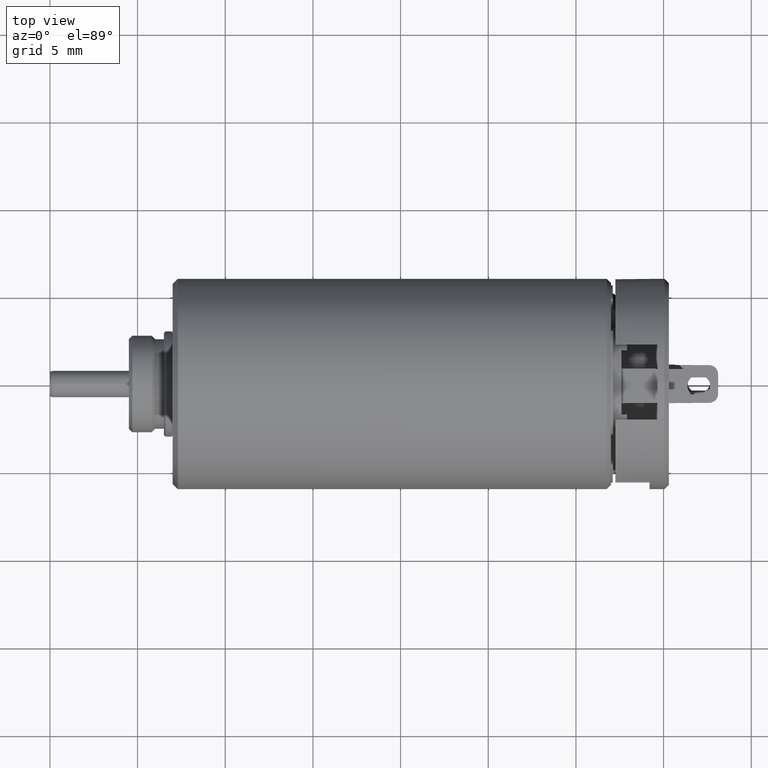
[diagram: clean part render]
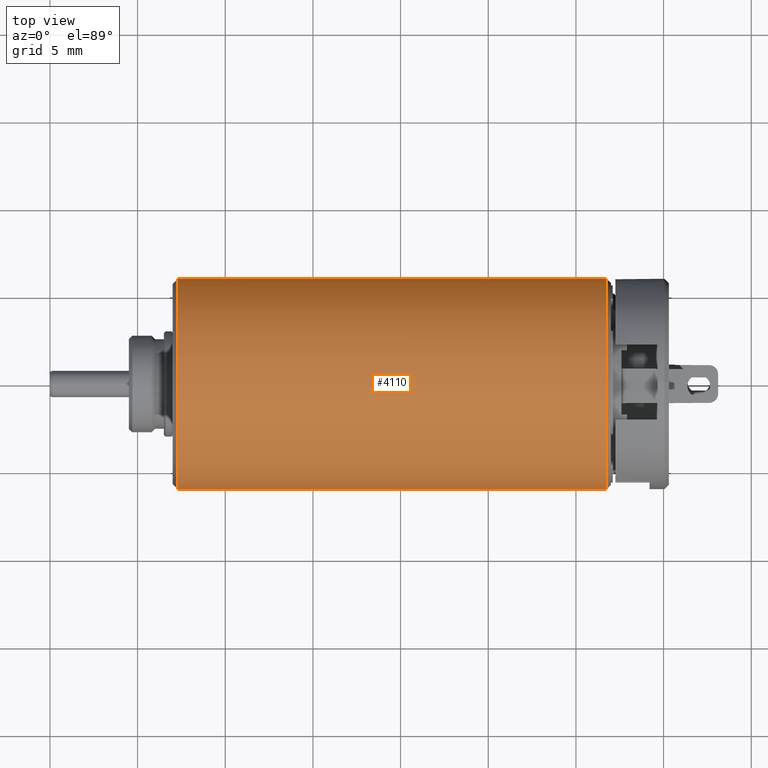
[diagram: same view with one face highlighted and labeled with its STEP entity id]
A machine part, top view. The second image highlights one B-rep face of the part: STEP entity #4110.
In plain terms, the highlighted cylindrical surface (partial cylindrical patch) has radius 6 mm, axis along (-1, 0, 0).
Its self-contained STEP definition (entity closure, byte-faithful):
#1=CARTESIAN_POINT('',(-7.699997107768E0,0.E0,0.E0));
#2=DIRECTION('',(1.E0,0.E0,0.E0));
#3=DIRECTION('',(0.E0,1.E0,0.E0));
#4=AXIS2_PLACEMENT_3D('',#1,#2,#3);
#6=CARTESIAN_POINT('',(1.674999892899E1,0.E0,0.E0));
#7=DIRECTION('',(1.E0,0.E0,0.E0));
#8=DIRECTION('',(0.E0,1.E0,0.E0));
#9=AXIS2_PLACEMENT_3D('',#6,#7,#8);
#24=DIRECTION('',(1.E0,9.820329545938E-9,-1.085391462231E-11));
#25=VECTOR('',#24,2.445000130628E1);
#26=CARTESIAN_POINT('',(-7.700000773356E0,-6.000000772906E0,
-1.519321831742E-10));
#27=LINE('',#26,#25);
#28=DIRECTION('',(-1.E0,9.820329400633E-9,-1.085354908867E-11));
#29=VECTOR('',#28,2.445000130628E1);
#30=CARTESIAN_POINT('',(1.675000053292E1,6.000000532799E0,4.173100768009E-10));
#31=LINE('',#30,#29);
#3506=CARTESIAN_POINT('',(1.674999892899E1,6.E0,0.E0));
#3507=CARTESIAN_POINT('',(1.674999892899E1,-6.E0,-1.232945036884E-12));
#3508=VERTEX_POINT('',#3506);
#3509=VERTEX_POINT('',#3507);
#3939=CARTESIAN_POINT('',(-7.699997107768E0,6.E0,0.E0));
#3940=CARTESIAN_POINT('',(-7.699997107768E0,-6.E0,0.E0));
#3941=VERTEX_POINT('',#3939);
#3942=VERTEX_POINT('',#3940);
#4096=CARTESIAN_POINT('',(1.724200410286E1,0.E0,0.E0));
#4097=DIRECTION('',(-1.E0,0.E0,0.E0));
#4098=DIRECTION('',(0.E0,1.E0,0.E0));
#4099=AXIS2_PLACEMENT_3D('',#4096,#4097,#4098);
#4100=CYLINDRICAL_SURFACE('',#4099,6.E0);
#4102=ORIENTED_EDGE('',*,*,#4101,.F.);
#4104=ORIENTED_EDGE('',*,*,#4103,.F.);
#4105=ORIENTED_EDGE('',*,*,#4085,.T.);
#4107=ORIENTED_EDGE('',*,*,#4106,.F.);
#4108=EDGE_LOOP('',(#4102,#4104,#4105,#4107));
#4109=FACE_OUTER_BOUND('',#4108,.F.);
#4110=ADVANCED_FACE('',(#4109),#4100,.T.);
#5=CIRCLE('',#4,6.E0);
#10=CIRCLE('',#9,6.E0);
#4085=EDGE_CURVE('',#3508,#3509,#10,.T.);
#4101=EDGE_CURVE('',#3941,#3942,#5,.T.);
#4103=EDGE_CURVE('',#3508,#3941,#31,.T.);
#4106=EDGE_CURVE('',#3942,#3509,#27,.T.);